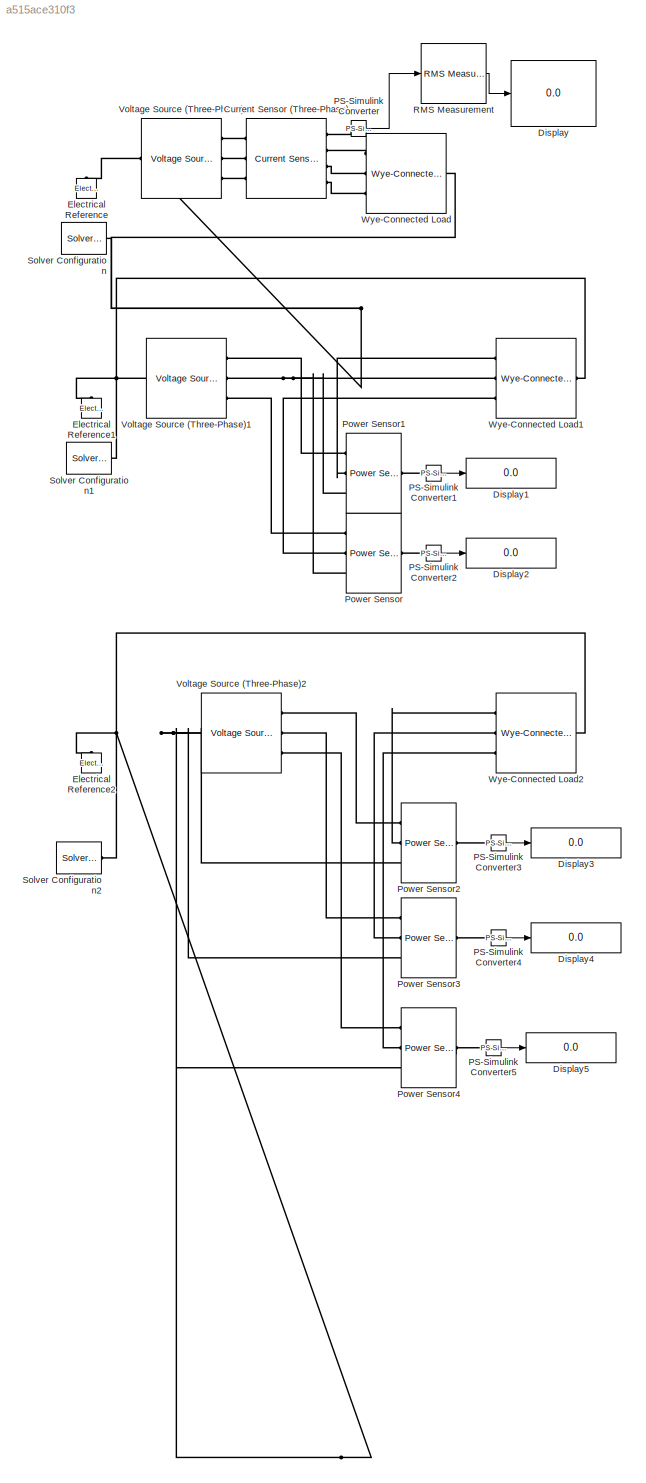
MODEL slx_a515ace310f3
KIND model
CONFIG AbsTol = auto
CONFIG EnableMultiTasking = off
CONFIG FixedStep = auto
CONFIG MaxStep = auto
CONFIG MinStep = auto
CONFIG RelTol = 1e-3
CONFIG SampleTimeConstraint = Unconstrained
CONFIG SolverName = VariableStepAuto
CONFIG StartTime = 0.0
CONFIG StopTime = 10.0
BLOCK [Reference] Current Sensor (Three-Phase)  REF=ee_lib/Sensors &
Transducers/Current Sensor
(Three-Phase)
  Ports = [0, 0, 0, 0, 0, 3, 4]
  SourceBlock = ee_lib/Sensors &\nTransducers/Current Sensor\n(Three-Phase)
  SourceProductBaseCode = PS
  SourceType = Current Sensor\n(Three-Phase)
BLOCK [Display] Display
  Decimation = 1
  Ports = [1]
BLOCK [Display] Display1
  Decimation = 1
  Ports = [1]
BLOCK [Display] Display2
  Decimation = 1
  Ports = [1]
BLOCK [Display] Display3
  Decimation = 1
  Ports = [1]
BLOCK [Display] Display4
  Decimation = 1
  Ports = [1]
BLOCK [Display] Display5
  Decimation = 1
  Ports = [1]
BLOCK [Reference] Electrical Reference  REF=fl_lib/Electrical/Electrical Elements/Electrical Reference
  NameLocation = right
  Ports = [0, 0, 0, 0, 0, 1]
  SourceBlock = fl_lib/Electrical/Electrical Elements/Electrical Reference
  SourceProductBaseCode = SS
  SourceType = Electrical Reference
BLOCK [Reference] Electrical Reference1  REF=fl_lib/Electrical/Electrical Elements/Electrical Reference
  NameLocation = right
  Ports = [0, 0, 0, 0, 0, 1]
  SourceBlock = fl_lib/Electrical/Electrical Elements/Electrical Reference
  SourceProductBaseCode = SS
  SourceType = Electrical Reference
BLOCK [Reference] Electrical Reference2  REF=fl_lib/Electrical/Electrical Elements/Electrical Reference
  NameLocation = right
  Ports = [0, 0, 0, 0, 0, 1]
  SourceBlock = fl_lib/Electrical/Electrical Elements/Electrical Reference
  SourceProductBaseCode = SS
  SourceType = Electrical Reference
BLOCK [Reference] PS-Simulink Converter  REF=nesl_utility/PS-Simulink
Converter
  Ports = [0, 1, 0, 0, 0, 1]
  SourceBlock = nesl_utility/PS-Simulink\nConverter
  SourceProductBaseCode = PW,SS
  SourceType = PS-Simulink\nConverter
BLOCK [Reference] PS-Simulink Converter1  REF=nesl_utility/PS-Simulink
Converter
  Ports = [0, 1, 0, 0, 0, 1]
  SourceBlock = nesl_utility/PS-Simulink\nConverter
  SourceProductBaseCode = PW,SS
  SourceType = PS-Simulink\nConverter
BLOCK [Reference] PS-Simulink Converter2  REF=nesl_utility/PS-Simulink
Converter
  Ports = [0, 1, 0, 0, 0, 1]
  SourceBlock = nesl_utility/PS-Simulink\nConverter
  SourceProductBaseCode = PW,SS
  SourceType = PS-Simulink\nConverter
BLOCK [Reference] PS-Simulink Converter3  REF=nesl_utility/PS-Simulink
Converter
  Ports = [0, 1, 0, 0, 0, 1]
  SourceBlock = nesl_utility/PS-Simulink\nConverter
  SourceProductBaseCode = PW,SS
  SourceType = PS-Simulink\nConverter
BLOCK [Reference] PS-Simulink Converter4  REF=nesl_utility/PS-Simulink
Converter
  Ports = [0, 1, 0, 0, 0, 1]
  SourceBlock = nesl_utility/PS-Simulink\nConverter
  SourceProductBaseCode = PW,SS
  SourceType = PS-Simulink\nConverter
BLOCK [Reference] PS-Simulink Converter5  REF=nesl_utility/PS-Simulink
Converter
  Ports = [0, 1, 0, 0, 0, 1]
  SourceBlock = nesl_utility/PS-Simulink\nConverter
  SourceProductBaseCode = PW,SS
  SourceType = PS-Simulink\nConverter
BLOCK [Reference] Power Sensor  REF=ee_lib/Sensors &
Transducers/Power Sensor
  Ports = [0, 0, 0, 0, 0, 3, 1]
  SourceBlock = ee_lib/Sensors &\nTransducers/Power Sensor
  SourceProductBaseCode = PS
  SourceType = Power Sensor
BLOCK [Reference] Power Sensor1  REF=ee_lib/Sensors &
Transducers/Power Sensor
  Ports = [0, 0, 0, 0, 0, 3, 1]
  SourceBlock = ee_lib/Sensors &\nTransducers/Power Sensor
  SourceProductBaseCode = PS
  SourceType = Power Sensor
BLOCK [Reference] Power Sensor2  REF=ee_lib/Sensors &
Transducers/Power Sensor
  Ports = [0, 0, 0, 0, 0, 3, 1]
  SourceBlock = ee_lib/Sensors &\nTransducers/Power Sensor
  SourceProductBaseCode = PS
  SourceType = Power Sensor
BLOCK [Reference] Power Sensor3  REF=ee_lib/Sensors &
Transducers/Power Sensor
  Ports = [0, 0, 0, 0, 0, 3, 1]
  SourceBlock = ee_lib/Sensors &\nTransducers/Power Sensor
  SourceProductBaseCode = PS
  SourceType = Power Sensor
BLOCK [Reference] Power Sensor4  REF=ee_lib/Sensors &
Transducers/Power Sensor
  Ports = [0, 0, 0, 0, 0, 3, 1]
  SourceBlock = ee_lib/Sensors &\nTransducers/Power Sensor
  SourceProductBaseCode = PS
  SourceType = Power Sensor
BLOCK [Reference] RMS Measurement  REF=eeRmsMeasurement/RMS
Measurement
  Ports = [1, 1]
  SourceBlock = eeRmsMeasurement/RMS\nMeasurement
  SourceProductBaseCode = PS
  SourceType = RMS Measurement
BLOCK [Reference] Solver Configuration  REF=nesl_utility/Solver
Configuration
  Ports = [0, 0, 0, 0, 0, 0, 1]
  SourceBlock = nesl_utility/Solver\nConfiguration
  SourceProductBaseCode = PW,SS
  SourceType = Solver\nConfiguration
BLOCK [Reference] Solver Configuration1  REF=nesl_utility/Solver
Configuration
  Ports = [0, 0, 0, 0, 0, 0, 1]
  SourceBlock = nesl_utility/Solver\nConfiguration
  SourceProductBaseCode = PW,SS
  SourceType = Solver\nConfiguration
BLOCK [Reference] Solver Configuration2  REF=nesl_utility/Solver
Configuration
  Ports = [0, 0, 0, 0, 0, 0, 1]
  SourceBlock = nesl_utility/Solver\nConfiguration
  SourceProductBaseCode = PW,SS
  SourceType = Solver\nConfiguration
BLOCK [Reference] Voltage Source (Three-Phase)  REF=ee_lib/Sources/Voltage
Source
(Three-Phase)
  Ports = [0, 0, 0, 0, 0, 1, 3]
  SourceBlock = ee_lib/Sources/Voltage\nSource\n(Three-Phase)
  SourceProductBaseCode = PS
  SourceType = Voltage\nSource\n(Three-Phase)
BLOCK [Reference] Voltage Source (Three-Phase)1  REF=ee_lib/Sources/Voltage
Source
(Three-Phase)
  Ports = [0, 0, 0, 0, 0, 1, 3]
  SourceBlock = ee_lib/Sources/Voltage\nSource\n(Three-Phase)
  SourceProductBaseCode = PS
  SourceType = Voltage\nSource\n(Three-Phase)
BLOCK [Reference] Voltage Source (Three-Phase)2  REF=ee_lib/Sources/Voltage
Source
(Three-Phase)
  Ports = [0, 0, 0, 0, 0, 1, 3]
  SourceBlock = ee_lib/Sources/Voltage\nSource\n(Three-Phase)
  SourceProductBaseCode = PS
  SourceType = Voltage\nSource\n(Three-Phase)
BLOCK [Reference] Wye-Connected Load  REF=ee_lib/Passive/RLC Assemblies/Wye-Connected Load
  Ports = [0, 0, 0, 0, 0, 3, 1]
  SourceBlock = ee_lib/Passive/RLC Assemblies/Wye-Connected Load
  SourceProductBaseCode = PS
  SourceType = Wye-Connected Load
BLOCK [Reference] Wye-Connected Load1  REF=ee_lib/Passive/RLC Assemblies/Wye-Connected Load
  Ports = [0, 0, 0, 0, 0, 3, 1]
  SourceBlock = ee_lib/Passive/RLC Assemblies/Wye-Connected Load
  SourceProductBaseCode = PS
  SourceType = Wye-Connected Load
BLOCK [Reference] Wye-Connected Load2  REF=ee_lib/Passive/RLC Assemblies/Wye-Connected Load
  Ports = [0, 0, 0, 0, 0, 3, 1]
  SourceBlock = ee_lib/Passive/RLC Assemblies/Wye-Connected Load
  SourceProductBaseCode = PS
  SourceType = Wye-Connected Load
LINE PS-Simulink Converter1:1 -> Display1:1
LINE PS-Simulink Converter2:1 -> Display2:1
LINE PS-Simulink Converter3:1 -> Display3:1
LINE PS-Simulink Converter4:1 -> Display4:1
LINE PS-Simulink Converter5:1 -> Display5:1
LINE PS-Simulink Converter:1 -> RMS Measurement:1
LINE RMS Measurement:1 -> Display:1
PLINE Current Sensor (Three-Phase):LConn1 -- Voltage Source (Three-Phase):RConn1
PLINE Current Sensor (Three-Phase):LConn2 -- Voltage Source (Three-Phase):RConn2
PLINE Current Sensor (Three-Phase):LConn3 -- Voltage Source (Three-Phase):RConn3
PLINE Current Sensor (Three-Phase):RConn1 -- PS-Simulink Converter:LConn1
PLINE Current Sensor (Three-Phase):RConn2 -- Wye-Connected Load:LConn1
PLINE Current Sensor (Three-Phase):RConn3 -- Wye-Connected Load:LConn2
PLINE Current Sensor (Three-Phase):RConn4 -- Wye-Connected Load:LConn3
PNET net1: Electrical Reference1:LConn1 -- Solver Configuration1:RConn1 -- Voltage Source (Three-Phase)1:LConn1 -- Wye-Connected Load1:RConn1
PNET net2: Electrical Reference2:LConn1 -- Power Sensor2:LConn3 -- Power Sensor3:LConn3 -- Power Sensor4:LConn3 -- Solver Configuration2:RConn1 -- Voltage Source (Three-Phase)2:LConn1 -- Wye-Connected Load2:RConn1
PNET net3: Electrical Reference:LConn1 -- Solver Configuration:RConn1 -- Voltage Source (Three-Phase):LConn1 -- Wye-Connected Load:RConn1
PLINE PS-Simulink Converter1:LConn1 -- Power Sensor1:RConn1
PLINE PS-Simulink Converter2:LConn1 -- Power Sensor:RConn1
PLINE PS-Simulink Converter3:LConn1 -- Power Sensor2:RConn1
PLINE PS-Simulink Converter4:LConn1 -- Power Sensor3:RConn1
PLINE PS-Simulink Converter5:LConn1 -- Power Sensor4:RConn1
PLINE Power Sensor1:LConn1 -- Voltage Source (Three-Phase)1:RConn1
PLINE Power Sensor1:LConn2 -- Wye-Connected Load1:LConn1
PNET net4: Power Sensor1:LConn3 -- Power Sensor:LConn3 -- Voltage Source (Three-Phase)1:RConn2 -- Wye-Connected Load1:LConn2
PLINE Power Sensor2:LConn1 -- Voltage Source (Three-Phase)2:RConn1
PLINE Power Sensor2:LConn2 -- Wye-Connected Load2:LConn1
PLINE Power Sensor3:LConn1 -- Voltage Source (Three-Phase)2:RConn2
PLINE Power Sensor3:LConn2 -- Wye-Connected Load2:LConn2
PLINE Power Sensor4:LConn1 -- Voltage Source (Three-Phase)2:RConn3
PLINE Power Sensor4:LConn2 -- Wye-Connected Load2:LConn3
PLINE Power Sensor:LConn1 -- Voltage Source (Three-Phase)1:RConn3
PLINE Power Sensor:LConn2 -- Wye-Connected Load1:LConn3
note: PNET lines group multi-terminal physical nets as a canonical sorted terminal list (undirected conserving connections); 2-terminal nets keep the pairwise PLINE form
